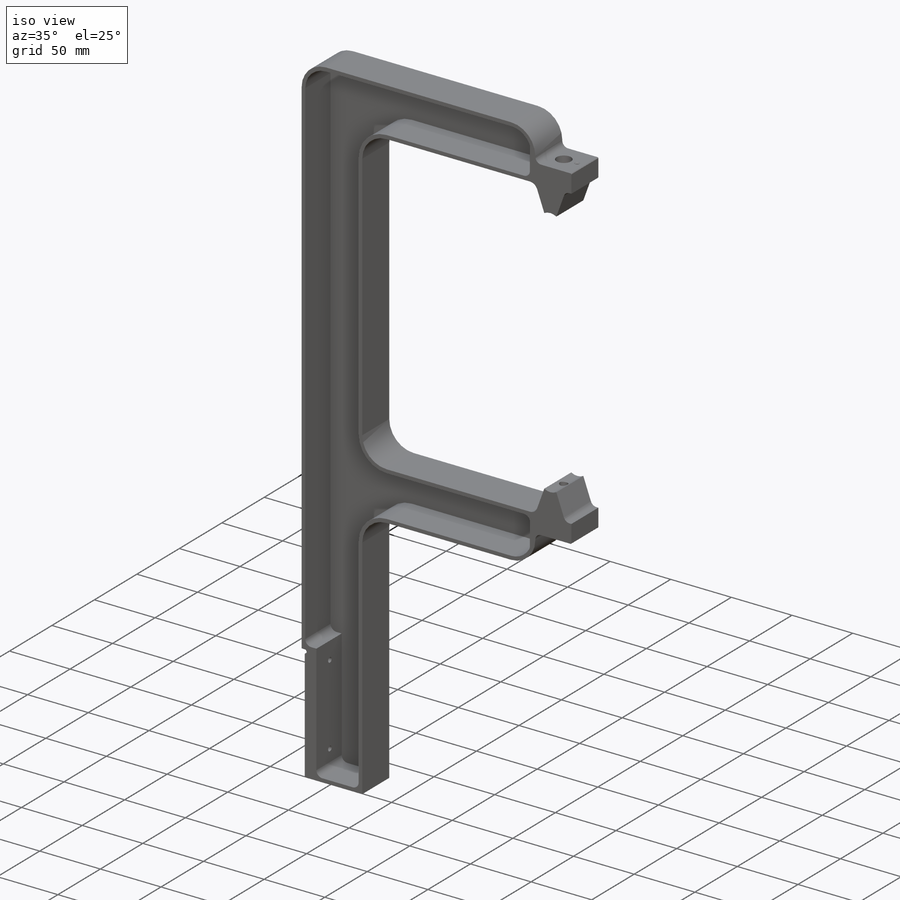
[diagram: iso view]
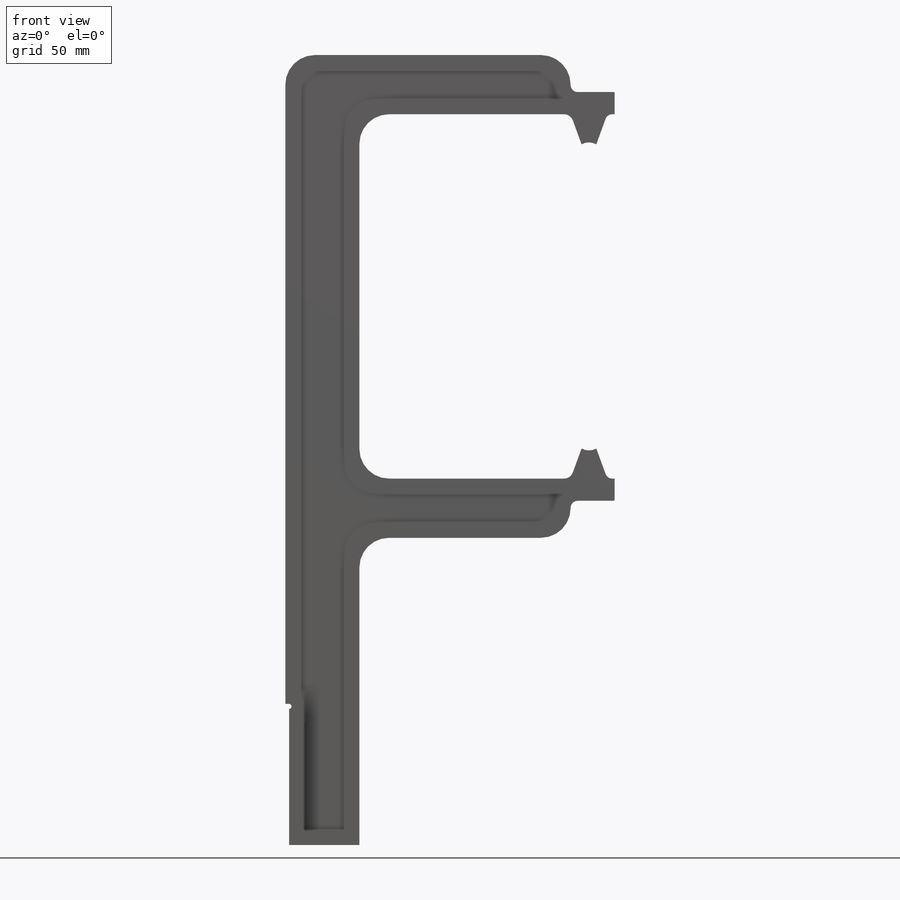
[diagram: front view]
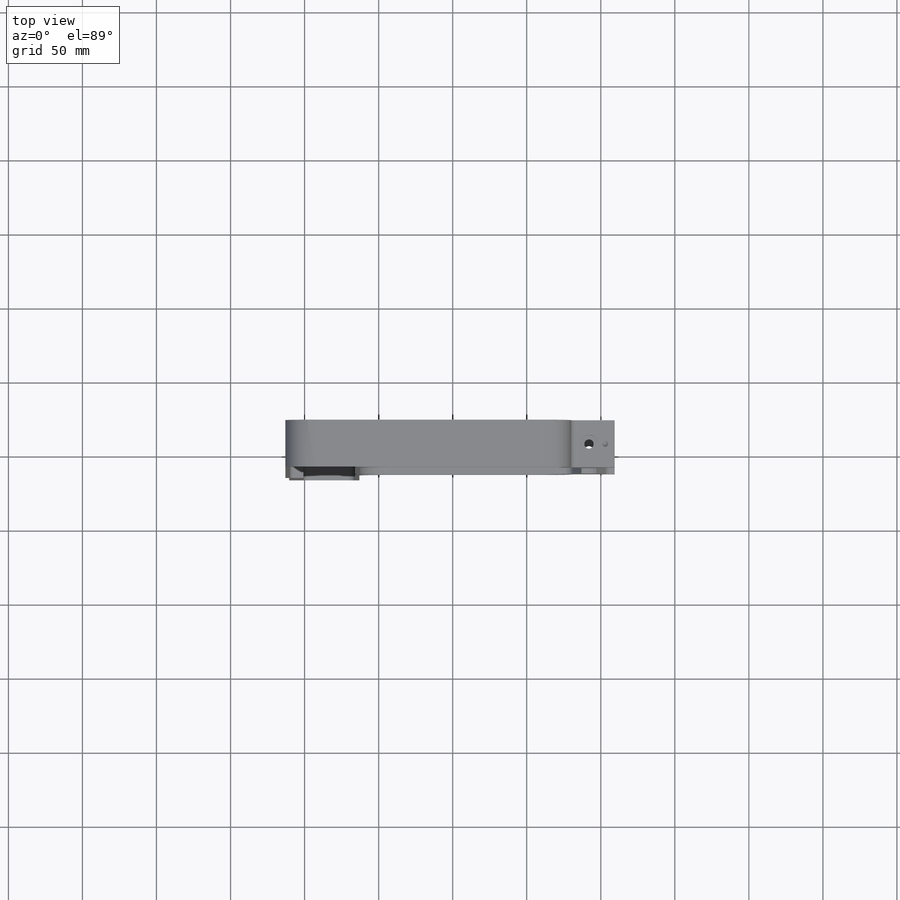
[diagram: top view]
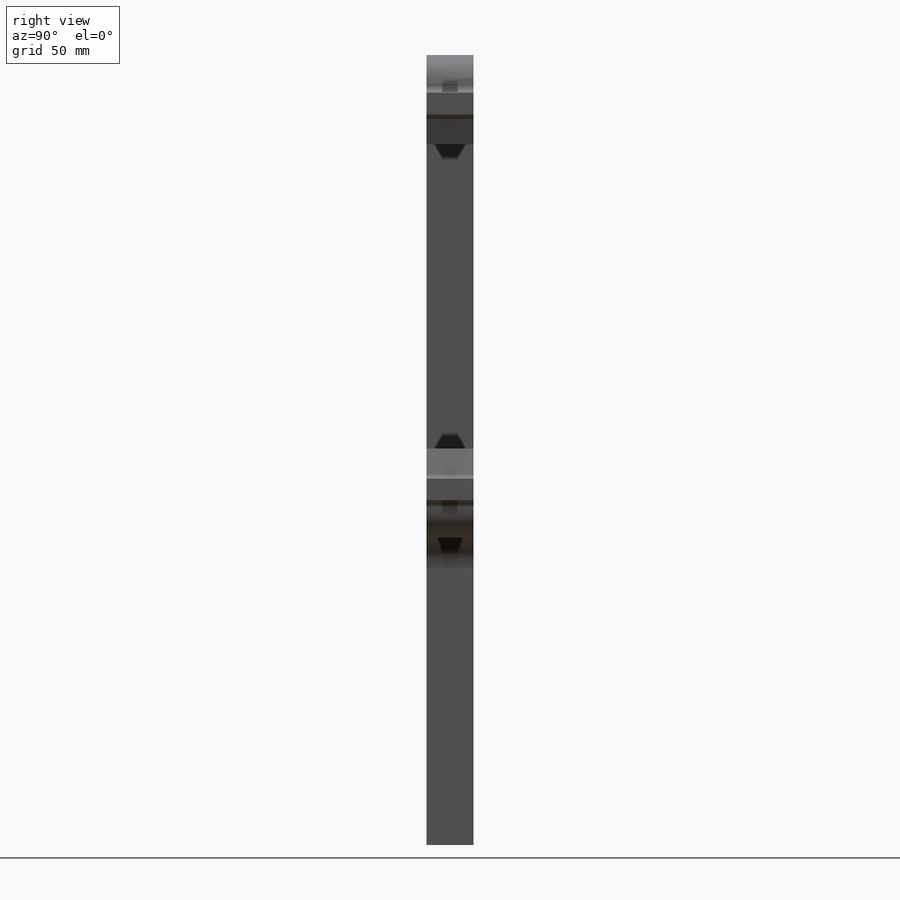
[diagram: right view]
SOLIDWORKS PART (.sldprt)
format: sldprt  version: not decoded by parser v0  size: 567,296 bytes
history: native  units: mm
features: sketch x12, fillet x5, cut_extrude x4, hole x3, chamfer x3, material x1, extrude x1, thread x1, mirror x1 (+11 scaffold rows collapsed)
feature tree (42):
  scaffold x11  (default folders/planes/origin — collapsed)
  material  "6061-T6 (SS)"
  sketch  "Sketch1"  dims[c1.D1=20.0mm c1.D12=430.04mm c1.D15=10.0mm c1.D2=94.0mm c1.D3=9.5mm c1.D4=40.0mm c1.D5=50.0mm c1.D6=40.0mm c1.D7=155.0mm c1.D8=25.0mm c1.D9=6.35mm c1.D10=40.0mm c2.D9=10.0mm c2.D10=3.65mm c2.D11=158.0mm c2.D13=~31.472756mm c3.D13=20.0deg c3.D14=~28.240183mm c4.D14=20.0deg c4.D16=29.0mm c4.D3=15.0mm c4.D4=50.8mm c4.D8=127.0mm c4.D9=258.2mm c5.D4=50.8mm c5.D8=258.2mm c5.D9=127.0mm c5.D10=5.0mm c5.D13=~20.458433mm c6.D13=40.0deg c6.D3=44.0mm c6.D17=5.0mm c6.D18=207.4mm]
  extrude  "Boss-Extrude1"  Depth=31.75mm
  sketch  "Sketch13"  dims[c1.D1=88.9508mm c1.D2=6.3246mm c1.D3=2.54mm c1.D4=95.2754mm c2.D2=95.2754mm c2.D1=95.25mm]
  cut_extrude  "Cut-Extrude2"  [1 undecoded]
  sketch  "Sketch14"  dims[D1=1.6002mm D2=3.302mm]
  cut_extrude  "Cut-Extrude3"  [1 undecoded]
  fillet  "Fillet4"  Radius=1.5875mm
  fillet  "Fillet1"  Radius=6.35mm
  fillet  "Fillet2"  Radius=20mm
  fillet  "Fillet3"  Radius=4.7625mm
  hole  "M6 Clearance Hole1"  Diameter=6.4mm Depth=50.038mm
  sketch  "Sketch9"
  sketch  "Sketch8"  dims[hole-wizard template sketch: 47 standard entries collapsed; hole parameters kept: c15.Hole Depth=50.038mm c15.D3=~14.816244mm c15.Drill Angle=118.0deg]
  sketch  "Sketch10"  dims[D2=12.0mm D1=147.0mm]
  cut_extrude  "Cut-Extrude1"  Depth=7mm
  hole  "#4-40 Tapped Hole1"  Diameter=2.2606mm Depth=7.6mm
  sketch  "Sketch12"
  sketch  "Sketch11"  dims[hole-wizard template sketch: 39 standard entries collapsed; hole parameters kept: c13.Tap Drill Dia.=2.2606mm c13.Tap Drill Depth=7.6mm c13.Near C'Sink Dia.=4.1148mm c13.D4=~33.297463mm c13.Near C'Sink Angle=90.0deg c14.D5=~14.816244mm c14.Drill Angle=118.0deg]
  thread  "Hole Thread1"  Diameter=5.69mm  [1 undecoded]
  mirror  "Mirror1"
  chamfer  "Chamfer1"  Distance=0.5mm Angle=45deg
  sketch  "Sketch15"  dims[D1=33.02mm D2=50.8mm]
  hole  "#10-32 Tapped Hole1"  Diameter=4.0386mm Depth=12.03mm
  sketch  "Sketch17"
  sketch  "Sketch16"  dims[hole-wizard template sketch: 40 standard entries collapsed; hole parameters kept: c13.Tap Drill Depth=12.03mm c13.Near C'Sink Dia.=6.096mm c13.D4=~33.297463mm c13.Near C'Sink Angle=90.0deg c14.D5=~14.816244mm c14.Drill Angle=118.0deg]
  chamfer  "Hole Thread2"  Distance=9.65mm
  chamfer  "Hole Thread3"  Distance=9.65mm
  sketch  "Sketch25"  dims[c1.D5=3.0mm c1.D6=9.652mm c1.D7=3.0mm c1.D3=3.0mm c1.D4=3.0mm c1.D1=3.0mm c1.D2=3.0mm c2.D3=3.0mm c2.D4=3.0mm c3.D3=3.0mm]
  cut_extrude  "Cut-Extrude7"  Depth=2mm
  fillet  "Fillet5"  Radius=4.7625mm
decode coverage: 24 of 30 modeling features carry decoded parameters
note: ~ marks probable driven/reference dimensions
note: 3 parameter values undecoded
note: suppression state not decoded; provenance and decode notes live in map.json
